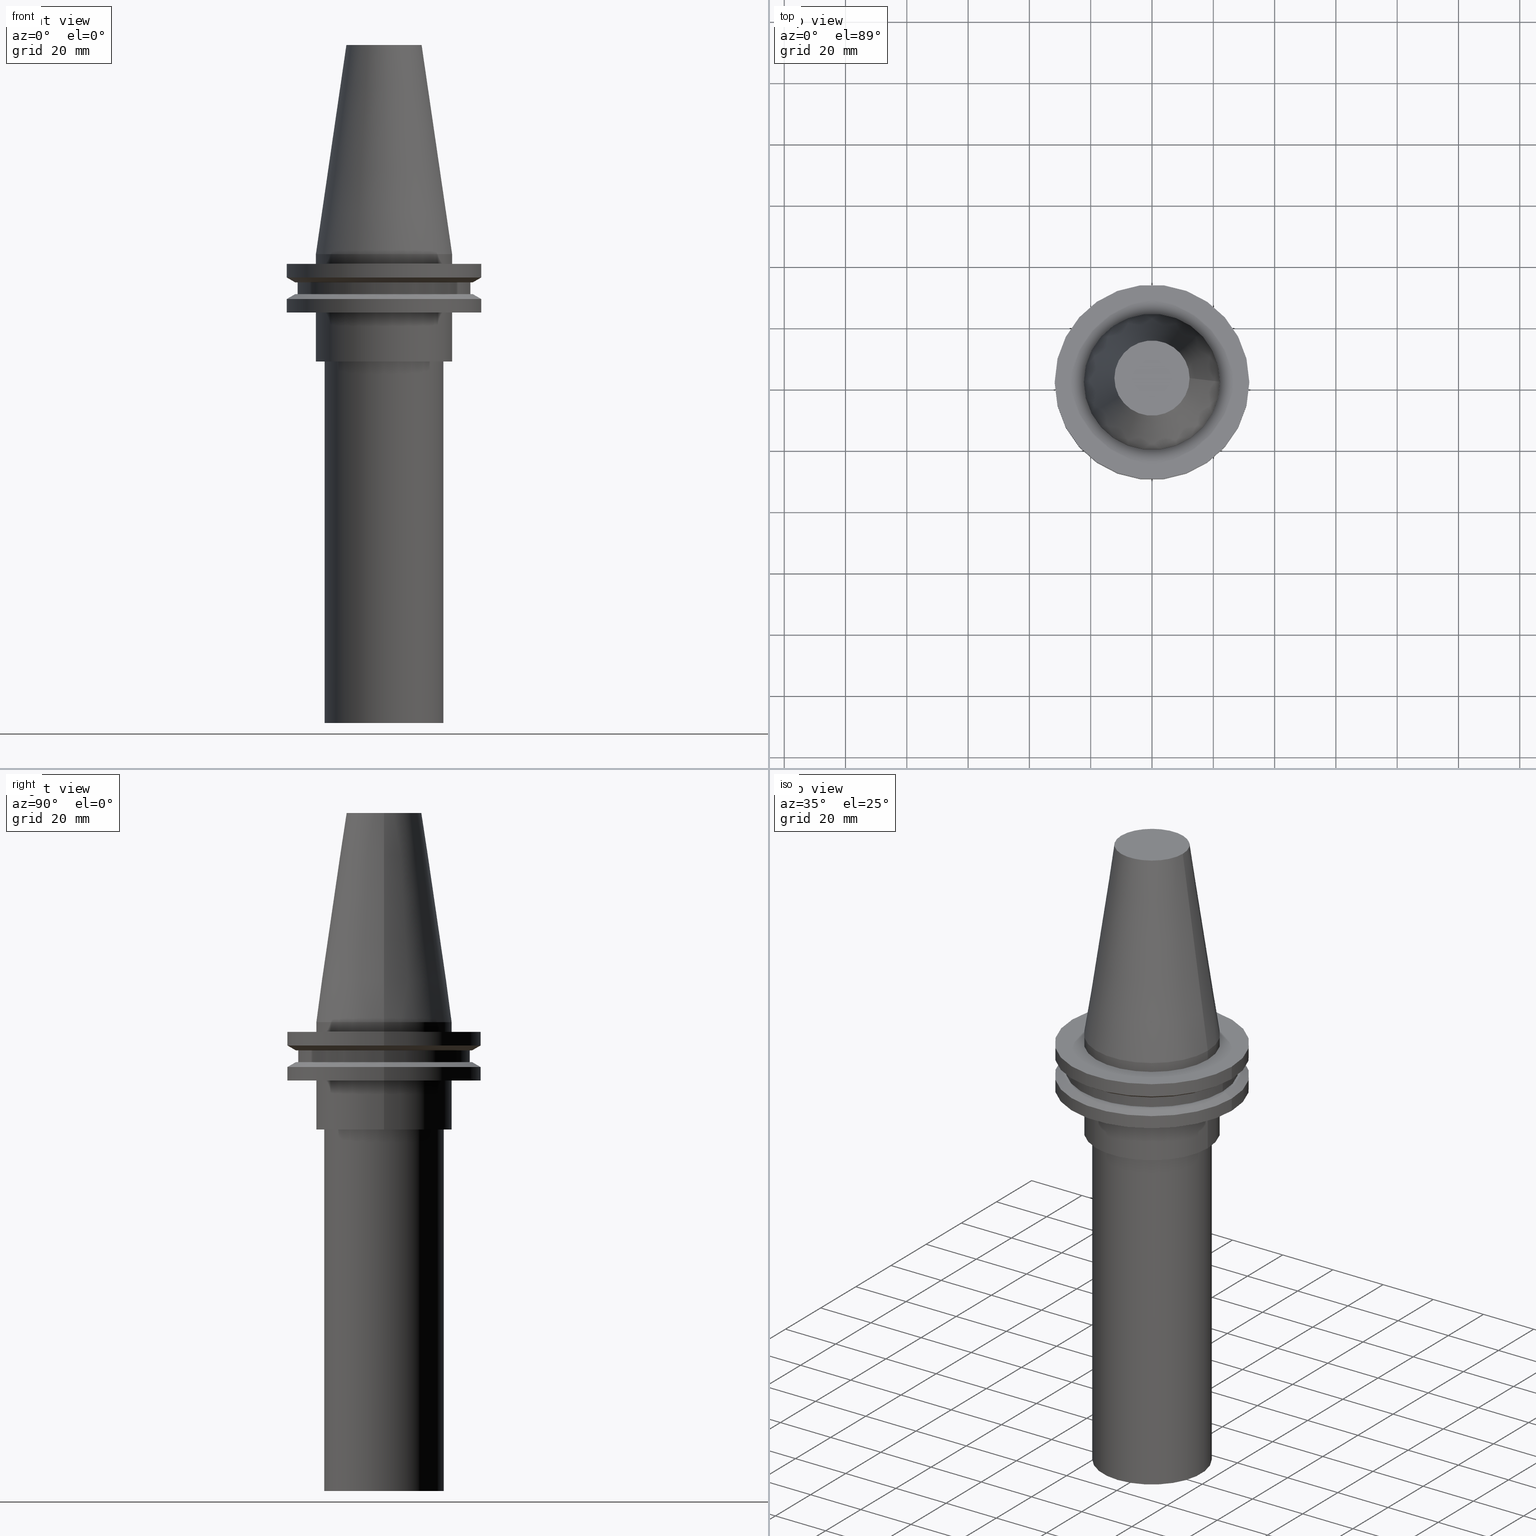
[diagram: canonical four-view strip — front | top / right | iso, engineering-drawing reading convention]
A machine part, canonical four-view strip (front | top / right | iso — engineering-drawing reading convention). The complete STEP part file that produces these views, byte-faithful:
ISO-10303-21;
HEADER;
FILE_DESCRIPTION (( 'STEP AP203' ),
    '1' );
FILE_NAME ('11.368.444.stp',
    '2022-03-09T15:13:07',
    ( '' ),
    ( '' ),
    'SwSTEP 2.0',
    'SolidWorks 2021',
    '' );
FILE_SCHEMA (( 'CONFIG_CONTROL_DESIGN' ));
ENDSEC;

DATA;
#1 = LOCAL_TIME ( 9, 13, 7.000000000000000000, #83 ) ;
#2 = CC_DESIGN_DATE_AND_TIME_ASSIGNMENT ( #172, #298, ( #370 ) ) ;
#3 = ORIENTED_EDGE ( 'NONE', *, *, #42, .T. ) ;
#4 = CARTESIAN_POINT ( 'NONE',  ( 0.000000000000000000, 0.000000000000000000, 68.25000000000000000 ) ) ;
#5 = EDGE_LOOP ( 'NONE', ( #3 ) ) ;
#6 = ADVANCED_FACE ( 'NONE', ( #152, #101 ), #223, .T. ) ;
#7 = AXIS2_PLACEMENT_3D ( 'NONE', #314, #53, #230 ) ;
#8 = EDGE_LOOP ( 'NONE', ( #304 ) ) ;
#9 = EDGE_LOOP ( 'NONE', ( #216 ) ) ;
#10 = CARTESIAN_POINT ( 'NONE',  ( 0.000000000000000000, 0.000000000000000000, -9.205000000000005400 ) ) ;
#11 = ORIENTED_EDGE ( 'NONE', *, *, #321, .T. ) ;
#12 = ORIENTED_EDGE ( 'NONE', *, *, #393, .F. ) ;
#13 = DIRECTION ( 'NONE',  ( -0.000000000000000000, -0.000000000000000000, 1.000000000000000000 ) ) ;
#14 = CARTESIAN_POINT ( 'NONE',  ( 0.000000000000000000, 0.000000000000000000, 68.25000000000000000 ) ) ;
#15 = DIRECTION ( 'NONE',  ( -0.000000000000000000, 8.721520231316460916E-17, -1.000000000000000000 ) ) ;
#16 = VERTEX_POINT ( 'NONE', #247 ) ;
#17 = EDGE_CURVE ( 'NONE', #133, #133, #144, .T. ) ;
#18 = CALENDAR_DATE ( 2022, 9, 3 ) ;
#19 = LOCAL_TIME ( 9, 13, 7.000000000000000000, #227 ) ;
#20 = FACE_OUTER_BOUND ( 'NONE', #372, .T. ) ;
#21 = EDGE_CURVE ( 'NONE', #46, #46, #329, .T. ) ;
#22 = APPROVAL_STATUS ( 'not_yet_approved' ) ;
#23 = DIRECTION ( 'NONE',  ( -0.000000000000000000, 8.721520231316460916E-17, -1.000000000000000000 ) ) ;
#24 = CALENDAR_DATE ( 2022, 9, 3 ) ;
#25 = FACE_OUTER_BOUND ( 'NONE', #9, .T. ) ;
#26 = CIRCLE ( 'NONE', #207, 19.50000000000000000 ) ;
#27 = DIRECTION ( 'NONE',  ( -0.000000000000000000, -0.000000000000000000, 1.000000000000000000 ) ) ;
#28 = ADVANCED_FACE ( 'NONE', ( #171, #256 ), #394, .T. ) ;
#29 = PERSON ( 'UNSPECIFIED', 'UNSPECIFIED', 'UNSPECIFIED', ('UNSPECIFIED'), ('UNSPECIFIED'), ('UNSPECIFIED') ) ;
#30 = DIRECTION ( 'NONE',  ( 1.000000000000000000, 0.000000000000000000, 0.000000000000000000 ) ) ;
#31 = CARTESIAN_POINT ( 'NONE',  ( 0.000000000000000000, 12.27178102086201150, 68.25000000000000000 ) ) ;
#32 = CARTESIAN_POINT ( 'NONE',  ( 0.000000000000000000, 0.000000000000000000, -3.174999999999997158 ) ) ;
#33 = ORIENTED_EDGE ( 'NONE', *, *, #59, .F. ) ;
#34 = EDGE_CURVE ( 'NONE', #378, #378, #265, .T. ) ;
#35 = ORIENTED_EDGE ( 'NONE', *, *, #345, .T. ) ;
#36 = EDGE_LOOP ( 'NONE', ( #99 ) ) ;
#37 = AXIS2_PLACEMENT_3D ( 'NONE', #288, #340, #225 ) ;
#38 = CARTESIAN_POINT ( 'NONE',  ( 28.17999999999999972, 0.000000000000000000, -13.05499999999999794 ) ) ;
#39 = ORIENTED_EDGE ( 'NONE', *, *, #17, .F. ) ;
#40 = DIRECTION ( 'NONE',  ( 1.000000000000000000, 0.000000000000000000, 0.000000000000000000 ) ) ;
#41 = ORIENTED_EDGE ( 'NONE', *, *, #393, .T. ) ;
#42 = EDGE_CURVE ( 'NONE', #72, #72, #159, .T. ) ;
#43 = CYLINDRICAL_SURFACE ( 'NONE', #123, 31.75000000000000000 ) ;
#44 = AXIS2_PLACEMENT_3D ( 'NONE', #234, #389, #269 ) ;
#45 = CC_DESIGN_SECURITY_CLASSIFICATION ( #370, ( #119 ) ) ;
#46 = VERTEX_POINT ( 'NONE', #103 ) ;
#47 = VERTEX_POINT ( 'NONE', #312 ) ;
#48 = EDGE_CURVE ( 'NONE', #255, #255, #92, .T. ) ;
#49 = CALENDAR_DATE ( 2022, 9, 3 ) ;
#50 = DIRECTION ( 'NONE',  ( -1.000000000000000000, 0.000000000000000000, -0.000000000000000000 ) ) ;
#51 = ORGANIZATION ( 'UNSPECIFIED', 'UNSPECIFIED', '' ) ;
#52 = PERSON_AND_ORGANIZATION ( #29, #51 ) ;
#53 = DIRECTION ( 'NONE',  ( -0.000000000000000000, -0.000000000000000000, 1.000000000000000000 ) ) ;
#54 = PLANE ( 'NONE',  #153 ) ;
#55 = CALENDAR_DATE ( 2022, 9, 3 ) ;
#56 = FACE_OUTER_BOUND ( 'NONE', #126, .T. ) ;
#57 = AXIS2_PLACEMENT_3D ( 'NONE', #166, #291, #266 ) ;
#58 = ADVANCED_FACE ( 'NONE', ( #395, #286 ), #73, .T. ) ;
#59 = EDGE_CURVE ( 'NONE', #130, #130, #391, .T. ) ;
#60 = DIRECTION ( 'NONE',  ( 1.000000000000000000, 0.000000000000000000, 0.000000000000000000 ) ) ;
#61 = AXIS2_PLACEMENT_3D ( 'NONE', #203, #114, #146 ) ;
#62 = DIRECTION ( 'NONE',  ( 1.000000000000000000, 0.000000000000000000, 0.000000000000000000 ) ) ;
#63 = FACE_OUTER_BOUND ( 'NONE', #341, .T. ) ;
#64 = ORIENTED_EDGE ( 'NONE', *, *, #214, .F. ) ;
#65 = CARTESIAN_POINT ( 'NONE',  ( 0.000000000000000000, 0.000000000000000000, -13.05499999999999794 ) ) ;
#66 = CONICAL_SURFACE ( 'NONE', #252, 31.75000000000000000, 1.047197551196597853 ) ;
#67 = ORIENTED_EDGE ( 'NONE', *, *, #34, .T. ) ;
#68 = LOCAL_TIME ( 9, 13, 7.000000000000000000, #204 ) ;
#69 = ORIENTED_EDGE ( 'NONE', *, *, #353, .T. ) ;
#70 = CARTESIAN_POINT ( 'NONE',  ( 0.000000000000000000, 28.97919780457007732, -9.204999999999996518 ) ) ;
#71 = CARTESIAN_POINT ( 'NONE',  ( 0.000000000000000000, 0.000000000000000000, 0.000000000000000000 ) ) ;
#72 = VERTEX_POINT ( 'NONE', #318 ) ;
#73 = CONICAL_SURFACE ( 'NONE', #277, 28.97919780457007732, 1.047197551196598297 ) ;
#74 = ADVANCED_FACE ( 'NONE', ( #325, #56 ), #84, .F. ) ;
#75 = CIRCLE ( 'NONE', #297, 28.97919780457007732 ) ;
#76 = CARTESIAN_POINT ( 'NONE',  ( 22.22500000000000142, 0.000000000000000000, -3.174999999999997158 ) ) ;
#77 = DIRECTION ( 'NONE',  ( 0.000000000000000000, 0.000000000000000000, -1.000000000000000000 ) ) ;
#78 = AXIS2_PLACEMENT_3D ( 'NONE', #354, #77, #50 ) ;
#79 = PERSON_AND_ORGANIZATION ( #29, #51 ) ;
#80 = DIRECTION ( 'NONE',  ( -0.000000000000000000, -0.000000000000000000, 1.000000000000000000 ) ) ;
#81 = PERSON_AND_ORGANIZATION_ROLE ( 'design_supplier' ) ;
#82 = CARTESIAN_POINT ( 'NONE',  ( 0.000000000000000000, 19.50000000000000000, -153.0000000000000000 ) ) ;
#83 = COORDINATED_UNIVERSAL_TIME_OFFSET ( 6, 0, .BEHIND. ) ;
#84 = PLANE ( 'NONE',  #296 ) ;
#85 = CC_DESIGN_PERSON_AND_ORGANIZATION_ASSIGNMENT ( #170, #289, ( #370 ) ) ;
#86 = CIRCLE ( 'NONE', #239, 28.17999999999999972 ) ;
#87 = SHAPE_DEFINITION_REPRESENTATION ( #205, #189 ) ;
#88 = FACE_OUTER_BOUND ( 'NONE', #151, .T. ) ;
#89 = FACE_OUTER_BOUND ( 'NONE', #369, .T. ) ;
#90 = EDGE_LOOP ( 'NONE', ( #11 ) ) ;
#91 = DIRECTION ( 'NONE',  ( -0.000000000000000000, -0.000000000000000000, 1.000000000000000000 ) ) ;
#92 = CIRCLE ( 'NONE', #131, 31.74999999999999289 ) ;
#93 = DIRECTION ( 'NONE',  ( 1.000000000000000000, 0.000000000000000000, 0.000000000000000000 ) ) ;
#94 = EDGE_LOOP ( 'NONE', ( #64 ) ) ;
#95 = ADVANCED_FACE ( 'NONE', ( #380, #206 ), #43, .T. ) ;
#96 = FACE_OUTER_BOUND ( 'NONE', #125, .T. ) ;
#97 = ORIENTED_EDGE ( 'NONE', *, *, #42, .F. ) ;
#98 = ADVANCED_FACE ( 'NONE', ( #20 ), #54, .T. ) ;
#99 = ORIENTED_EDGE ( 'NONE', *, *, #222, .T. ) ;
#100 = ADVANCED_FACE ( 'NONE', ( #237, #25 ), #309, .T. ) ;
#101 = FACE_OUTER_BOUND ( 'NONE', #283, .T. ) ;
#102 = UNCERTAINTY_MEASURE_WITH_UNIT (LENGTH_MEASURE( 1.000000000000000082E-05 ), #108, 'distance_accuracy_value', 'NONE');
#103 = CARTESIAN_POINT ( 'NONE',  ( 31.75000000000000000, 0.000000000000000000, -7.605276606597335842 ) ) ;
#104 = DIRECTION ( 'NONE',  ( 1.000000000000000000, 0.000000000000000000, 0.000000000000000000 ) ) ;
#105 = CARTESIAN_POINT ( 'NONE',  ( 31.74999999999999289, 0.000000000000000000, -19.04999999999999716 ) ) ;
#106 = AXIS2_PLACEMENT_3D ( 'NONE', #346, #180, #93 ) ;
#107 = APPROVAL_ROLE ( '' ) ;
#108 =( LENGTH_UNIT ( ) NAMED_UNIT ( * ) SI_UNIT ( .MILLI., .METRE. ) );
#109 = COORDINATED_UNIVERSAL_TIME_OFFSET ( 6, 0, .BEHIND. ) ;
#110 = EDGE_CURVE ( 'NONE', #47, #47, #138, .T. ) ;
#111 = DIRECTION ( 'NONE',  ( 0.000000000000000000, 1.000000000000000000, 0.000000000000000000 ) ) ;
#112 = AXIS2_PLACEMENT_3D ( 'NONE', #14, #27, #104 ) ;
#113 = APPROVAL_DATE_TIME ( #263, #147 ) ;
#114 = DIRECTION ( 'NONE',  ( -0.000000000000000000, -0.000000000000000000, 1.000000000000000000 ) ) ;
#115 = CARTESIAN_POINT ( 'NONE',  ( 0.000000000000000000, 0.000000000000000000, 68.25000000000000000 ) ) ;
#116 = ADVANCED_FACE ( 'NONE', ( #160, #299 ), #267, .T. ) ;
#117 = CARTESIAN_POINT ( 'NONE',  ( 0.000000000000000000, 0.000000000000000000, -9.205000000000005400 ) ) ;
#118 = PRODUCT ( '11.368.444', '11.368.444', '', ( #140 ) ) ;
#119 = PRODUCT_DEFINITION_FORMATION_WITH_SPECIFIED_SOURCE ( 'ANY', '', #118, .NOT_KNOWN. ) ;
#120 = DIRECTION ( 'NONE',  ( -0.000000000000000000, 8.721520231316460916E-17, -1.000000000000000000 ) ) ;
#121 = EDGE_LOOP ( 'NONE', ( #35 ) ) ;
#122 = PLANE ( 'NONE',  #351 ) ;
#123 = AXIS2_PLACEMENT_3D ( 'NONE', #294, #167, #359 ) ;
#124 = CIRCLE ( 'NONE', #173, 31.75000000000000000 ) ;
#125 = EDGE_LOOP ( 'NONE', ( #188 ) ) ;
#126 = EDGE_LOOP ( 'NONE', ( #377 ) ) ;
#127 = CC_DESIGN_PERSON_AND_ORGANIZATION_ASSIGNMENT ( #361, #81, ( #119 ) ) ;
#128 = FACE_OUTER_BOUND ( 'NONE', #374, .T. ) ;
#129 = EDGE_LOOP ( 'NONE', ( #367 ) ) ;
#130 = VERTEX_POINT ( 'NONE', #193 ) ;
#131 = AXIS2_PLACEMENT_3D ( 'NONE', #292, #80, #320 ) ;
#132 = EDGE_LOOP ( 'NONE', ( #313 ) ) ;
#133 = VERTEX_POINT ( 'NONE', #136 ) ;
#134 = ADVANCED_FACE ( 'NONE', ( #192, #135 ), #228, .F. ) ;
#135 = FACE_OUTER_BOUND ( 'NONE', #155, .T. ) ;
#136 = CARTESIAN_POINT ( 'NONE',  ( 31.75000000000000000, 0.000000000000000000, -3.174999999999997158 ) ) ;
#137 =( NAMED_UNIT ( * ) PLANE_ANGLE_UNIT ( ) SI_UNIT ( $, .RADIAN. ) );
#138 = CIRCLE ( 'NONE', #61, 28.97919780457008088 ) ;
#139 = CIRCLE ( 'NONE', #384, 22.22499999999999787 ) ;
#140 = MECHANICAL_CONTEXT ( 'NONE', #363, 'mechanical' ) ;
#141 = DIRECTION ( 'NONE',  ( 0.000000000000000000, 0.000000000000000000, -1.000000000000000000 ) ) ;
#142 = CALENDAR_DATE ( 2022, 9, 3 ) ;
#143 = DIRECTION ( 'NONE',  ( -0.000000000000000000, 8.721520231316460916E-17, -1.000000000000000000 ) ) ;
#144 = CIRCLE ( 'NONE', #243, 31.75000000000000000 ) ;
#145 = LOCAL_TIME ( 9, 13, 7.000000000000000000, #322 ) ;
#146 = DIRECTION ( 'NONE',  ( 1.000000000000000000, 0.000000000000000000, 0.000000000000000000 ) ) ;
#147 = APPROVAL ( #327, 'UNSPECIFIED' ) ;
#148 = CARTESIAN_POINT ( 'NONE',  ( 0.000000000000000000, 28.17999999999999972, -13.05499999999999794 ) ) ;
#149 = CARTESIAN_POINT ( 'NONE',  ( 0.000000000000000000, 0.000000000000000000, -14.65472339340266572 ) ) ;
#150 = DIRECTION ( 'NONE',  ( -1.000000000000000000, 0.000000000000000000, -0.000000000000000000 ) ) ;
#151 = EDGE_LOOP ( 'NONE', ( #338 ) ) ;
#152 = FACE_OUTER_BOUND ( 'NONE', #276, .T. ) ;
#153 = AXIS2_PLACEMENT_3D ( 'NONE', #82, #23, #174 ) ;
#154 = ORIENTED_EDGE ( 'NONE', *, *, #353, .F. ) ;
#155 = EDGE_LOOP ( 'NONE', ( #220 ) ) ;
#156 = DIRECTION ( 'NONE',  ( 1.000000000000000000, 0.000000000000000000, 0.000000000000000000 ) ) ;
#157 = ORIENTED_EDGE ( 'NONE', *, *, #222, .F. ) ;
#158 = DIRECTION ( 'NONE',  ( 0.000000000000000000, 1.000000000000000000, 0.000000000000000000 ) ) ;
#159 = CIRCLE ( 'NONE', #7, 28.17999999999999972 ) ;
#160 = FACE_OUTER_BOUND ( 'NONE', #94, .T. ) ;
#161 = CARTESIAN_POINT ( 'NONE',  ( 0.000000000000000000, 19.50000000000000000, -153.0000000000000000 ) ) ;
#162 = CARTESIAN_POINT ( 'NONE',  ( 0.000000000000000000, 19.50000000000000000, -35.04999999999999716 ) ) ;
#163 = SECURITY_CLASSIFICATION_LEVEL ( 'unclassified' ) ;
#164 = ADVANCED_FACE ( 'NONE', ( #215, #273 ), #208, .T. ) ;
#165 = CC_DESIGN_APPROVAL ( #147, ( #119 ) ) ;
#166 = CARTESIAN_POINT ( 'NONE',  ( 0.000000000000000000, 0.000000000000000000, 0.000000000000000000 ) ) ;
#167 = DIRECTION ( 'NONE',  ( -0.000000000000000000, -0.000000000000000000, 1.000000000000000000 ) ) ;
#168 = PERSON_AND_ORGANIZATION ( #29, #51 ) ;
#169 = CARTESIAN_POINT ( 'NONE',  ( 0.000000000000000000, 0.000000000000000000, 0.000000000000000000 ) ) ;
#170 = PERSON_AND_ORGANIZATION ( #29, #51 ) ;
#171 = FACE_OUTER_BOUND ( 'NONE', #191, .T. ) ;
#172 = DATE_AND_TIME ( #55, #1 ) ;
#173 = AXIS2_PLACEMENT_3D ( 'NONE', #381, #190, #156 ) ;
#174 = DIRECTION ( 'NONE',  ( 0.000000000000000000, 1.000000000000000000, 8.721520231316460916E-17 ) ) ;
#175 = FACE_OUTER_BOUND ( 'NONE', #185, .T. ) ;
#176 = CARTESIAN_POINT ( 'NONE',  ( 0.000000000000000000, 0.000000000000000000, -19.04999999999999716 ) ) ;
#177 = ADVANCED_FACE ( 'NONE', ( #334, #63 ), #66, .T. ) ;
#178 = AXIS2_PLACEMENT_3D ( 'NONE', #176, #91, #212 ) ;
#179 = FACE_BOUND ( 'NONE', #240, .T. ) ;
#180 = DIRECTION ( 'NONE',  ( -0.000000000000000000, -0.000000000000000000, 1.000000000000000000 ) ) ;
#181 = CARTESIAN_POINT ( 'NONE',  ( 0.000000000000000000, 0.000000000000000000, -35.04999999999999716 ) ) ;
#182 = CARTESIAN_POINT ( 'NONE',  ( 0.000000000000000000, 0.000000000000000000, -3.174999999999997158 ) ) ;
#183 = ADVANCED_FACE ( 'NONE', ( #175, #89 ), #210, .T. ) ;
#184 = DIRECTION ( 'NONE',  ( 1.000000000000000000, 0.000000000000000000, 0.000000000000000000 ) ) ;
#185 = EDGE_LOOP ( 'NONE', ( #154 ) ) ;
#186 = CARTESIAN_POINT ( 'NONE',  ( 22.22499999999999787, 0.000000000000000000, -35.04999999999999716 ) ) ;
#187 = CC_DESIGN_APPROVAL ( #300, ( #339 ) ) ;
#188 = ORIENTED_EDGE ( 'NONE', *, *, #48, .F. ) ;
#189 = ADVANCED_BREP_SHAPE_REPRESENTATION ( '11.368.444', ( #375, #57 ), #226 ) ;
#190 = DIRECTION ( 'NONE',  ( -0.000000000000000000, -0.000000000000000000, 1.000000000000000000 ) ) ;
#191 = EDGE_LOOP ( 'NONE', ( #33 ) ) ;
#192 = FACE_BOUND ( 'NONE', #337, .T. ) ;
#193 = CARTESIAN_POINT ( 'NONE',  ( 22.22500000000000142, 0.000000000000000000, 0.000000000000000000 ) ) ;
#194 = APPROVAL_PERSON_ORGANIZATION ( #259, #373, #107 ) ;
#195 = VERTEX_POINT ( 'NONE', #186 ) ;
#196 = PERSON_AND_ORGANIZATION_ROLE ( 'design_owner' ) ;
#197 = CC_DESIGN_PERSON_AND_ORGANIZATION_ASSIGNMENT ( #52, #196, ( #118 ) ) ;
#198 = DIRECTION ( 'NONE',  ( 1.000000000000000000, 0.000000000000000000, 0.000000000000000000 ) ) ;
#199 = AXIS2_PLACEMENT_3D ( 'NONE', #115, #236, #328 ) ;
#200 = APPROVAL_ROLE ( '' ) ;
#201 = DIRECTION ( 'NONE',  ( 1.000000000000000000, 0.000000000000000000, 0.000000000000000000 ) ) ;
#202 = DATE_AND_TIME ( #49, #290 ) ;
#203 = CARTESIAN_POINT ( 'NONE',  ( 0.000000000000000000, 0.000000000000000000, -13.05499999999999794 ) ) ;
#204 = COORDINATED_UNIVERSAL_TIME_OFFSET ( 6, 0, .BEHIND. ) ;
#205 = PRODUCT_DEFINITION_SHAPE ( 'NONE', 'NONE',  #339 ) ;
#206 = FACE_OUTER_BOUND ( 'NONE', #218, .T. ) ;
#207 = AXIS2_PLACEMENT_3D ( 'NONE', #181, #15, #158 ) ;
#208 = CYLINDRICAL_SURFACE ( 'NONE', #211, 19.49999999999999645 ) ;
#209 = PLANE ( 'NONE',  #245 ) ;
#210 = CYLINDRICAL_SURFACE ( 'NONE', #356, 31.75000000000000000 ) ;
#211 = AXIS2_PLACEMENT_3D ( 'NONE', #307, #120, #305 ) ;
#212 = DIRECTION ( 'NONE',  ( 1.000000000000000000, 0.000000000000000000, 0.000000000000000000 ) ) ;
#213 = ORIENTED_EDGE ( 'NONE', *, *, #21, .T. ) ;
#214 = EDGE_CURVE ( 'NONE', #287, #287, #302, .T. ) ;
#215 = FACE_OUTER_BOUND ( 'NONE', #90, .T. ) ;
#216 = ORIENTED_EDGE ( 'NONE', *, *, #59, .T. ) ;
#217 = PLANE ( 'NONE',  #317 ) ;
#218 = EDGE_LOOP ( 'NONE', ( #213 ) ) ;
#219 = DIRECTION ( 'NONE',  ( 1.000000000000000000, 0.000000000000000000, 0.000000000000000000 ) ) ;
#220 = ORIENTED_EDGE ( 'NONE', *, *, #17, .T. ) ;
#221 = CARTESIAN_POINT ( 'NONE',  ( 22.22500000000000142, 0.000000000000000000, -19.04999999999999716 ) ) ;
#222 = EDGE_CURVE ( 'NONE', #316, #316, #232, .T. ) ;
#223 = CYLINDRICAL_SURFACE ( 'NONE', #106, 28.17999999999999972 ) ;
#224 = DIRECTION ( 'NONE',  ( -0.000000000000000000, -0.000000000000000000, 1.000000000000000000 ) ) ;
#225 = DIRECTION ( 'NONE',  ( 1.000000000000000000, 0.000000000000000000, 0.000000000000000000 ) ) ;
#226 =( GEOMETRIC_REPRESENTATION_CONTEXT ( 3 ) GLOBAL_UNCERTAINTY_ASSIGNED_CONTEXT ( ( #102 ) ) GLOBAL_UNIT_ASSIGNED_CONTEXT ( ( #108, #137, #352 ) ) REPRESENTATION_CONTEXT ( 'NONE', 'WORKASPACE' ) );
#227 = COORDINATED_UNIVERSAL_TIME_OFFSET ( 6, 0, .BEHIND. ) ;
#228 = PLANE ( 'NONE',  #78 ) ;
#229 = DATE_TIME_ROLE ( 'creation_date' ) ;
#230 = DIRECTION ( 'NONE',  ( 1.000000000000000000, 0.000000000000000000, 0.000000000000000000 ) ) ;
#231 = CC_DESIGN_PERSON_AND_ORGANIZATION_ASSIGNMENT ( #79, #235, ( #339 ) ) ;
#232 = CIRCLE ( 'NONE', #284, 12.27178102086201150 ) ;
#233 = PERSON_AND_ORGANIZATION ( #29, #51 ) ;
#234 = CARTESIAN_POINT ( 'NONE',  ( 0.000000000000000000, 0.000000000000000000, -7.605276606597335842 ) ) ;
#235 = PERSON_AND_ORGANIZATION_ROLE ( 'creator' ) ;
#236 = DIRECTION ( 'NONE',  ( -0.000000000000000000, -0.000000000000000000, 1.000000000000000000 ) ) ;
#237 = FACE_BOUND ( 'NONE', #242, .T. ) ;
#238 = ADVANCED_FACE ( 'NONE', ( #179, #88 ), #122, .F. ) ;
#239 = AXIS2_PLACEMENT_3D ( 'NONE', #65, #224, #40 ) ;
#240 = EDGE_LOOP ( 'NONE', ( #279 ) ) ;
#241 = CARTESIAN_POINT ( 'NONE',  ( 0.000000000000000000, 0.000000000000000000, -35.04999999999999716 ) ) ;
#242 = EDGE_LOOP ( 'NONE', ( #157 ) ) ;
#243 = AXIS2_PLACEMENT_3D ( 'NONE', #182, #306, #198 ) ;
#244 = DIRECTION ( 'NONE',  ( 0.000000000000000000, 0.000000000000000000, -1.000000000000000000 ) ) ;
#245 = AXIS2_PLACEMENT_3D ( 'NONE', #31, #244, #150 ) ;
#246 = ORIENTED_EDGE ( 'NONE', *, *, #214, .T. ) ;
#247 = CARTESIAN_POINT ( 'NONE',  ( 28.97919780457007732, 0.000000000000000000, -9.205000000000005400 ) ) ;
#248 = ORIENTED_EDGE ( 'NONE', *, *, #251, .F. ) ;
#249 = VERTEX_POINT ( 'NONE', #76 ) ;
#250 = EDGE_LOOP ( 'NONE', ( #12 ) ) ;
#251 = EDGE_CURVE ( 'NONE', #249, #249, #260, .T. ) ;
#252 = AXIS2_PLACEMENT_3D ( 'NONE', #149, #365, #278 ) ;
#253 = VERTEX_POINT ( 'NONE', #38 ) ;
#254 = ORIENTED_EDGE ( 'NONE', *, *, #48, .T. ) ;
#255 = VERTEX_POINT ( 'NONE', #105 ) ;
#256 = FACE_OUTER_BOUND ( 'NONE', #379, .T. ) ;
#257 = FACE_BOUND ( 'NONE', #281, .T. ) ;
#258 = ADVANCED_FACE ( 'NONE', ( #371 ), #209, .F. ) ;
#259 = PERSON_AND_ORGANIZATION ( #29, #51 ) ;
#260 = CIRCLE ( 'NONE', #330, 22.22500000000000142 ) ;
#261 = DATE_AND_TIME ( #18, #19 ) ;
#262 = CARTESIAN_POINT ( 'NONE',  ( 0.000000000000000000, 1.028703311283776507E-14, -153.0000000000000000 ) ) ;
#263 = DATE_AND_TIME ( #142, #145 ) ;
#264 = DIRECTION ( 'NONE',  ( 0.000000000000000000, 0.000000000000000000, -1.000000000000000000 ) ) ;
#265 = CIRCLE ( 'NONE', #349, 19.49999999999998934 ) ;
#266 = DIRECTION ( 'NONE',  ( 1.000000000000000000, 0.000000000000000000, 0.000000000000000000 ) ) ;
#267 = CYLINDRICAL_SURFACE ( 'NONE', #112, 22.22500000000000142 ) ;
#268 = EDGE_LOOP ( 'NONE', ( #311 ) ) ;
#269 = DIRECTION ( 'NONE',  ( 1.000000000000000000, 0.000000000000000000, 0.000000000000000000 ) ) ;
#270 = EDGE_CURVE ( 'NONE', #195, #195, #139, .T. ) ;
#271 = CARTESIAN_POINT ( 'NONE',  ( 0.000000000000000000, 22.22499999999999787, -35.04999999999999716 ) ) ;
#272 = CC_DESIGN_APPROVAL ( #373, ( #370 ) ) ;
#273 = FACE_OUTER_BOUND ( 'NONE', #268, .T. ) ;
#274 = DIRECTION ( 'NONE',  ( -0.000000000000000000, -0.000000000000000000, 1.000000000000000000 ) ) ;
#275 = ORIENTED_EDGE ( 'NONE', *, *, #251, .T. ) ;
#276 = EDGE_LOOP ( 'NONE', ( #97 ) ) ;
#277 = AXIS2_PLACEMENT_3D ( 'NONE', #117, #362, #295 ) ;
#278 = DIRECTION ( 'NONE',  ( -1.000000000000000000, 0.000000000000000000, 0.000000000000000000 ) ) ;
#279 = ORIENTED_EDGE ( 'NONE', *, *, #321, .F. ) ;
#280 = DIRECTION ( 'NONE',  ( 0.000000000000000000, -0.000000000000000000, 1.000000000000000000 ) ) ;
#281 = EDGE_LOOP ( 'NONE', ( #246 ) ) ;
#282 = DIRECTION ( 'NONE',  ( 1.000000000000000000, 0.000000000000000000, 0.000000000000000000 ) ) ;
#283 = EDGE_LOOP ( 'NONE', ( #41 ) ) ;
#284 = AXIS2_PLACEMENT_3D ( 'NONE', #4, #303, #30 ) ;
#285 = FACE_BOUND ( 'NONE', #5, .T. ) ;
#286 = FACE_BOUND ( 'NONE', #121, .T. ) ;
#287 = VERTEX_POINT ( 'NONE', #221 ) ;
#288 = CARTESIAN_POINT ( 'NONE',  ( 0.000000000000000000, 31.74999999999999289, -19.04999999999999716 ) ) ;
#289 = PERSON_AND_ORGANIZATION_ROLE ( 'classification_officer' ) ;
#290 = LOCAL_TIME ( 9, 13, 7.000000000000000000, #109 ) ;
#291 = DIRECTION ( 'NONE',  ( 0.000000000000000000, 0.000000000000000000, 1.000000000000000000 ) ) ;
#292 = CARTESIAN_POINT ( 'NONE',  ( 0.000000000000000000, 0.000000000000000000, -19.04999999999999716 ) ) ;
#293 = APPLICATION_PROTOCOL_DEFINITION ( 'international standard', 'config_control_design', 1994, #333 ) ;
#294 = CARTESIAN_POINT ( 'NONE',  ( 0.000000000000000000, 0.000000000000000000, 68.25000000000000000 ) ) ;
#295 = DIRECTION ( 'NONE',  ( 1.000000000000000000, 0.000000000000000000, 0.000000000000000000 ) ) ;
#296 = AXIS2_PLACEMENT_3D ( 'NONE', #148, #141, #323 ) ;
#297 = AXIS2_PLACEMENT_3D ( 'NONE', #10, #13, #219 ) ;
#298 = DATE_TIME_ROLE ( 'classification_date' ) ;
#299 = FACE_OUTER_BOUND ( 'NONE', #129, .T. ) ;
#300 = APPROVAL ( #22, 'UNSPECIFIED' ) ;
#301 = CARTESIAN_POINT ( 'NONE',  ( 0.000000000000000000, 0.000000000000000000, 68.25000000000000000 ) ) ;
#302 = CIRCLE ( 'NONE', #178, 22.22500000000000142 ) ;
#303 = DIRECTION ( 'NONE',  ( -0.000000000000000000, -0.000000000000000000, 1.000000000000000000 ) ) ;
#304 = ORIENTED_EDGE ( 'NONE', *, *, #110, .F. ) ;
#305 = DIRECTION ( 'NONE',  ( 0.000000000000000000, 1.000000000000000000, 0.000000000000000000 ) ) ;
#306 = DIRECTION ( 'NONE',  ( -0.000000000000000000, -0.000000000000000000, 1.000000000000000000 ) ) ;
#307 = CARTESIAN_POINT ( 'NONE',  ( 0.000000000000000000, 1.028703311283776507E-14, -153.0000000000000000 ) ) ;
#308 = ORIENTED_EDGE ( 'NONE', *, *, #345, .F. ) ;
#309 = CONICAL_SURFACE ( 'NONE', #382, 22.22500000000000142, 0.1448138465474119174 ) ;
#310 = VERTEX_POINT ( 'NONE', #376 ) ;
#311 = ORIENTED_EDGE ( 'NONE', *, *, #34, .F. ) ;
#312 = CARTESIAN_POINT ( 'NONE',  ( 28.97919780457008088, 0.000000000000000000, -13.05499999999999794 ) ) ;
#313 = ORIENTED_EDGE ( 'NONE', *, *, #21, .F. ) ;
#314 = CARTESIAN_POINT ( 'NONE',  ( 0.000000000000000000, 0.000000000000000000, -9.204999999999991189 ) ) ;
#315 = AXIS2_PLACEMENT_3D ( 'NONE', #169, #357, #201 ) ;
#316 = VERTEX_POINT ( 'NONE', #350 ) ;
#317 = AXIS2_PLACEMENT_3D ( 'NONE', #70, #280, #282 ) ;
#318 = CARTESIAN_POINT ( 'NONE',  ( 28.17999999999999972, 0.000000000000000000, -9.204999999999991189 ) ) ;
#319 = APPLICATION_PROTOCOL_DEFINITION ( 'international standard', 'config_control_design', 1994, #363 ) ;
#320 = DIRECTION ( 'NONE',  ( 1.000000000000000000, 0.000000000000000000, 0.000000000000000000 ) ) ;
#321 = EDGE_CURVE ( 'NONE', #344, #344, #26, .T. ) ;
#322 = COORDINATED_UNIVERSAL_TIME_OFFSET ( 6, 0, .BEHIND. ) ;
#323 = DIRECTION ( 'NONE',  ( -1.000000000000000000, 0.000000000000000000, -0.000000000000000000 ) ) ;
#324 = PERSON_AND_ORGANIZATION_ROLE ( 'creator' ) ;
#325 = FACE_BOUND ( 'NONE', #250, .T. ) ;
#326 = ADVANCED_FACE ( 'NONE', ( #128, #285 ), #217, .F. ) ;
#327 = APPROVAL_STATUS ( 'not_yet_approved' ) ;
#328 = DIRECTION ( 'NONE',  ( 1.000000000000000000, 0.000000000000000000, 0.000000000000000000 ) ) ;
#329 = CIRCLE ( 'NONE', #44, 31.75000000000000000 ) ;
#330 = AXIS2_PLACEMENT_3D ( 'NONE', #32, #274, #184 ) ;
#331 = DIRECTION ( 'NONE',  ( -0.000000000000000000, -0.000000000000000000, 1.000000000000000000 ) ) ;
#332 = DIRECTION ( 'NONE',  ( 0.000000000000000000, -0.000000000000000000, 1.000000000000000000 ) ) ;
#333 = APPLICATION_CONTEXT ( 'configuration controlled 3d designs of mechanical parts and assemblies' ) ;
#334 = FACE_BOUND ( 'NONE', #8, .T. ) ;
#335 = CLOSED_SHELL ( 'NONE', ( #100, #258, #238, #116, #388, #183, #177, #74, #6, #326, #58, #95, #134, #28, #164, #98 ) ) ;
#336 = DIRECTION ( 'NONE',  ( 1.000000000000000000, 0.000000000000000000, 0.000000000000000000 ) ) ;
#337 = EDGE_LOOP ( 'NONE', ( #248 ) ) ;
#338 = ORIENTED_EDGE ( 'NONE', *, *, #270, .F. ) ;
#339 = PRODUCT_DEFINITION ( 'UNKNOWN', '', #119, #347 ) ;
#340 = DIRECTION ( 'NONE',  ( 0.000000000000000000, -0.000000000000000000, 1.000000000000000000 ) ) ;
#341 = EDGE_LOOP ( 'NONE', ( #69 ) ) ;
#342 = APPROVAL_PERSON_ORGANIZATION ( #355, #147, #200 ) ;
#343 = EDGE_LOOP ( 'NONE', ( #39 ) ) ;
#344 = VERTEX_POINT ( 'NONE', #162 ) ;
#345 = EDGE_CURVE ( 'NONE', #16, #16, #75, .T. ) ;
#346 = CARTESIAN_POINT ( 'NONE',  ( 0.000000000000000000, 0.000000000000000000, 68.25000000000000000 ) ) ;
#347 = DESIGN_CONTEXT ( 'detailed design', #333, 'design' ) ;
#348 = PLANE ( 'NONE',  #37 ) ;
#349 = AXIS2_PLACEMENT_3D ( 'NONE', #262, #143, #111 ) ;
#350 = CARTESIAN_POINT ( 'NONE',  ( 12.27178102086201150, 0.000000000000000000, 68.25000000000000000 ) ) ;
#351 = AXIS2_PLACEMENT_3D ( 'NONE', #271, #332, #336 ) ;
#352 =( NAMED_UNIT ( * ) SI_UNIT ( $, .STERADIAN. ) SOLID_ANGLE_UNIT ( ) );
#353 = EDGE_CURVE ( 'NONE', #310, #310, #124, .T. ) ;
#354 = CARTESIAN_POINT ( 'NONE',  ( 0.000000000000000000, 31.75000000000000000, -3.174999999999999378 ) ) ;
#355 = PERSON_AND_ORGANIZATION ( #29, #51 ) ;
#356 = AXIS2_PLACEMENT_3D ( 'NONE', #301, #331, #60 ) ;
#357 = DIRECTION ( 'NONE',  ( -0.000000000000000000, -0.000000000000000000, 1.000000000000000000 ) ) ;
#358 = APPROVAL_DATE_TIME ( #390, #300 ) ;
#359 = DIRECTION ( 'NONE',  ( 1.000000000000000000, 0.000000000000000000, 0.000000000000000000 ) ) ;
#360 = CC_DESIGN_PERSON_AND_ORGANIZATION_ASSIGNMENT ( #233, #324, ( #119 ) ) ;
#361 = PERSON_AND_ORGANIZATION ( #29, #51 ) ;
#362 = DIRECTION ( 'NONE',  ( -0.000000000000000000, -0.000000000000000000, 1.000000000000000000 ) ) ;
#363 = APPLICATION_CONTEXT ( 'configuration controlled 3d designs of mechanical parts and assemblies' ) ;
#364 = APPROVAL_PERSON_ORGANIZATION ( #168, #300, #387 ) ;
#365 = DIRECTION ( 'NONE',  ( 0.000000000000000000, 0.000000000000000000, -1.000000000000000000 ) ) ;
#366 = PRODUCT_RELATED_PRODUCT_CATEGORY ( 'detail', '', ( #118 ) ) ;
#367 = ORIENTED_EDGE ( 'NONE', *, *, #270, .T. ) ;
#368 = DIRECTION ( 'NONE',  ( -0.000000000000000000, -0.000000000000000000, 1.000000000000000000 ) ) ;
#369 = EDGE_LOOP ( 'NONE', ( #254 ) ) ;
#370 = SECURITY_CLASSIFICATION ( '', '', #163 ) ;
#371 = FACE_OUTER_BOUND ( 'NONE', #36, .T. ) ;
#372 = EDGE_LOOP ( 'NONE', ( #67 ) ) ;
#373 = APPROVAL ( #383, 'UNSPECIFIED' ) ;
#374 = EDGE_LOOP ( 'NONE', ( #308 ) ) ;
#375 = MANIFOLD_SOLID_BREP ( 'CKB', #335 ) ;
#376 = CARTESIAN_POINT ( 'NONE',  ( 31.75000000000000000, 0.000000000000000000, -14.65472339340266572 ) ) ;
#377 = ORIENTED_EDGE ( 'NONE', *, *, #110, .T. ) ;
#378 = VERTEX_POINT ( 'NONE', #161 ) ;
#379 = EDGE_LOOP ( 'NONE', ( #275 ) ) ;
#380 = FACE_OUTER_BOUND ( 'NONE', #343, .T. ) ;
#381 = CARTESIAN_POINT ( 'NONE',  ( 0.000000000000000000, 0.000000000000000000, -14.65472339340266572 ) ) ;
#382 = AXIS2_PLACEMENT_3D ( 'NONE', #71, #264, #392 ) ;
#383 = APPROVAL_STATUS ( 'not_yet_approved' ) ;
#384 = AXIS2_PLACEMENT_3D ( 'NONE', #241, #368, #62 ) ;
#385 = CC_DESIGN_DATE_AND_TIME_ASSIGNMENT ( #202, #229, ( #339 ) ) ;
#386 = APPROVAL_DATE_TIME ( #261, #373 ) ;
#387 = APPROVAL_ROLE ( '' ) ;
#388 = ADVANCED_FACE ( 'NONE', ( #96, #257 ), #348, .F. ) ;
#389 = DIRECTION ( 'NONE',  ( -0.000000000000000000, -0.000000000000000000, 1.000000000000000000 ) ) ;
#390 = DATE_AND_TIME ( #24, #68 ) ;
#391 = CIRCLE ( 'NONE', #315, 22.22500000000000142 ) ;
#392 = DIRECTION ( 'NONE',  ( -1.000000000000000000, 0.000000000000000000, 0.000000000000000000 ) ) ;
#393 = EDGE_CURVE ( 'NONE', #253, #253, #86, .T. ) ;
#394 = CYLINDRICAL_SURFACE ( 'NONE', #199, 22.22500000000000142 ) ;
#395 = FACE_OUTER_BOUND ( 'NONE', #132, .T. ) ;
ENDSEC;
END-ISO-10303-21;
